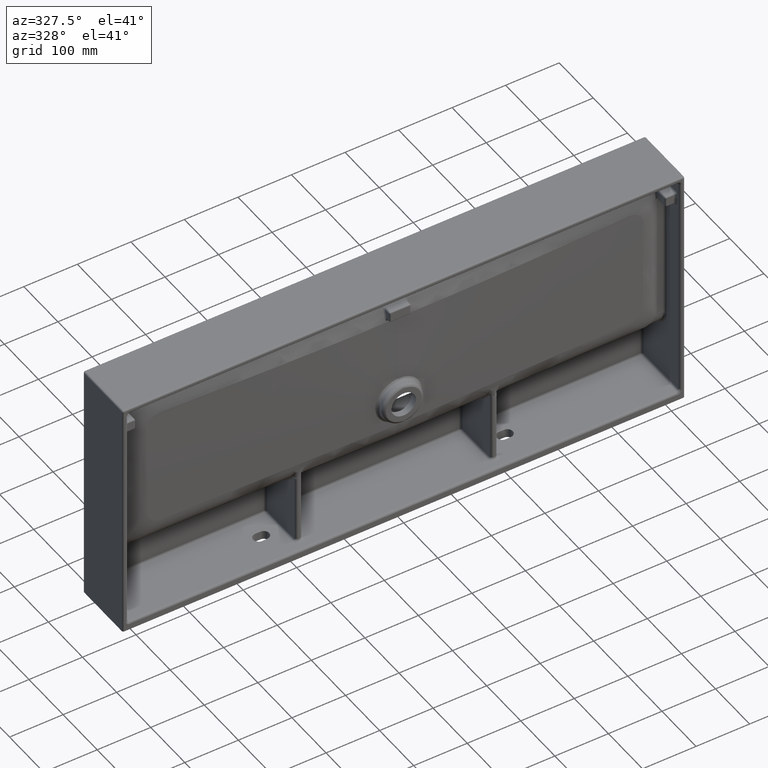
[diagram: clean part render]
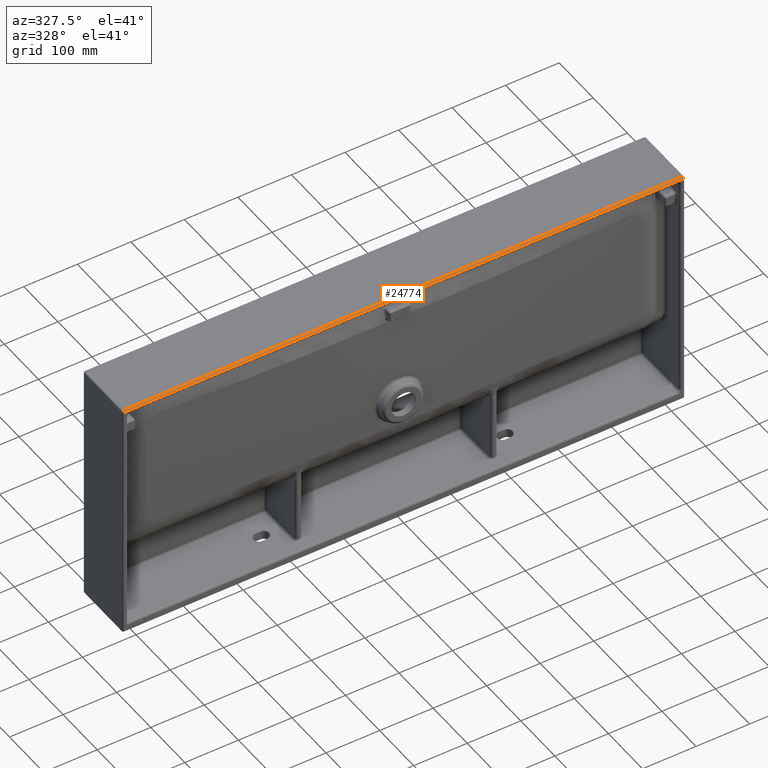
[diagram: same view with one face highlighted and labeled with its STEP entity id]
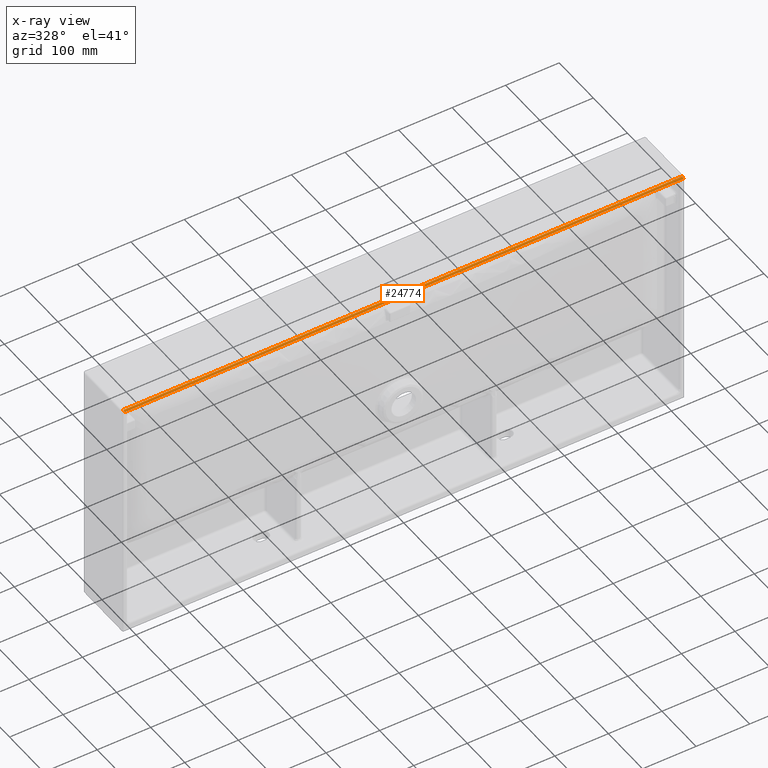
[diagram: x-ray of the same camera — body ghosted, the highlighted face saturated]
A machine part, auxiliary view. The second image highlights one B-rep face of the part: STEP entity #24774.
The next image is the same camera in x-ray: the body ghosted, the highlighted face saturated — about 0% of this face is hidden behind the body in this view.
In plain terms, the highlighted cylindrical surface (edge-blend (fillet) strip) has radius 3 mm, axis along (-1, -0, 0).
Its self-contained STEP definition (entity closure, byte-faithful):
#3615 = CARTESIAN_POINT ( 'NONE',  ( 77.99999999999951700, 0.0000000000000000000, 456.9999999999999400 ) ) ;
#5307 = FACE_OUTER_BOUND ( 'NONE', #23391, .T. ) ;
#7048 = CARTESIAN_POINT ( 'NONE',  ( 1122.000000000000000, 0.0000000000000000000, 456.9999999999999400 ) ) ;
#8831 = B_SPLINE_CURVE_WITH_KNOTS ( 'NONE', 3,
 ( #68832, #76207, #54310, #9753, #61775, #17244, #69143, #24624, #76513, #32116 ),
 .UNSPECIFIED., .F., .F.,
 ( 4, 2, 2, 2, 4 ),
 ( 0.0000000000000000000, 0.2500000000000000000, 0.5000000000000000000, 0.7500000000000000000, 1.000000000000000000 ),
 .UNSPECIFIED. ) ;
#9191 = VERTEX_POINT ( 'NONE', #56309 ) ;
#9753 = CARTESIAN_POINT ( 'NONE',  ( 1122.000000000000000, 0.3786408349372649700, 458.5108569411125400 ) ) ;
#11685 = CARTESIAN_POINT ( 'NONE',  ( 1185.000004263183200, 3.000000000000055500, 457.0000000000000000 ) ) ;
#12430 = VERTEX_POINT ( 'NONE', #62488 ) ;
#15033 = CARTESIAN_POINT ( 'NONE',  ( 1122.000000000001100, 2.999999999999986200, 460.0000000000000000 ) ) ;
#17244 = CARTESIAN_POINT ( 'NONE',  ( 1122.000000000000000, 1.156359840075279300, 459.3990005271945700 ) ) ;
#17475 = ORIENTED_EDGE ( 'NONE', *, *, #66239, .T. ) ;
#22413 = CARTESIAN_POINT ( 'NONE',  ( 773.9999999999995500, 3.000000000000001800, 460.0000000000000000 ) ) ;
#22637 = ORIENTED_EDGE ( 'NONE', *, *, #86615, .T. ) ;
#23391 = EDGE_LOOP ( 'NONE', ( #40473, #38882, #17475, #22637 ) ) ;
#24624 = CARTESIAN_POINT ( 'NONE',  ( 1122.000000000000500, 2.214756346922167800, 459.9219180300050900 ) ) ;
#24774 = ADVANCED_FACE ( 'NONE', ( #5307 ), #42462, .T. ) ;
#25675 = CARTESIAN_POINT ( 'NONE',  ( 77.99999999999963100, 2.214756346922167800, 459.9219180300050300 ) ) ;
#26726 = CARTESIAN_POINT ( 'NONE',  ( 425.9999999999998300, 0.0000000000000000000, 457.0000000000000000 ) ) ;
#31195 = CARTESIAN_POINT ( 'NONE',  ( 77.99999999999951700, 2.999999999999988900, 459.9999999999999400 ) ) ;
#32116 = CARTESIAN_POINT ( 'NONE',  ( 1122.000000000001100, 2.999999999999986200, 460.0000000000000000 ) ) ;
#33153 = CARTESIAN_POINT ( 'NONE',  ( 77.99999999999963100, 1.156359840075279500, 459.3990005271945700 ) ) ;
#37257 = EDGE_CURVE ( 'NONE', #71289, #9191, #67032, .T. ) ;
#38471 = VERTEX_POINT ( 'NONE', #83673 ) ;
#38882 = ORIENTED_EDGE ( 'NONE', *, *, #73671, .T. ) ;
#40301 = CARTESIAN_POINT ( 'NONE',  ( 77.99999999999963100, 2.607300918301278500, 459.9999999999999400 ) ) ;
#40473 = ORIENTED_EDGE ( 'NONE', *, *, #37257, .F. ) ;
#40628 = CARTESIAN_POINT ( 'NONE',  ( 77.99999999999963100, 0.3786408349372651400, 458.5108569411126500 ) ) ;
#42462 = CYLINDRICAL_SURFACE ( 'NONE', #76880, 3.000000000000008900 ) ;
#48156 = CARTESIAN_POINT ( 'NONE',  ( 77.99999999999963100, 4.679010000632755100E-014, 457.3926990816987700 ) ) ;
#48892 = CARTESIAN_POINT ( 'NONE',  ( 1122.000000000000000, 0.0000000000000000000, 456.9999999999999400 ) ) ;
#54310 = CARTESIAN_POINT ( 'NONE',  ( 1122.000000000000000, 0.07808196999509838000, 457.7852436530779400 ) ) ;
#55248 = DIRECTION ( 'NONE',  ( -1.000000000000000000, -0.0000000000000000000, 0.0000000000000000000 ) ) ;
#56309 = CARTESIAN_POINT ( 'NONE',  ( 77.99999999999951700, 0.0000000000000000000, 456.9999999999999400 ) ) ;
#61775 = CARTESIAN_POINT ( 'NONE',  ( 1122.000000000000200, 0.6009994728054939300, 458.8436401599248000 ) ) ;
#62488 = CARTESIAN_POINT ( 'NONE',  ( 1122.000000000001100, 2.999999999999986200, 460.0000000000000000 ) ) ;
#62814 = CARTESIAN_POINT ( 'NONE',  ( 77.99999999999951700, 2.999999999999988900, 459.9999999999999400 ) ) ;
#66239 = EDGE_CURVE ( 'NONE', #12430, #38471, #92422, .T. ) ;
#67032 = B_SPLINE_CURVE_WITH_KNOTS ( 'NONE', 3,
 ( #48892, #93128, #26726, #78611 ),
 .UNSPECIFIED., .F., .F.,
 ( 4, 4 ),
 ( 0.0000000000000000000, 1.000000000000000000 ),
 .UNSPECIFIED. ) ;
#68832 = CARTESIAN_POINT ( 'NONE',  ( 1122.000000000000000, 0.0000000000000000000, 456.9999999999999400 ) ) ;
#69143 = CARTESIAN_POINT ( 'NONE',  ( 1122.000000000000200, 1.489143058887320700, 459.6213591650627600 ) ) ;
#71002 = DIRECTION ( 'NONE',  ( 0.0000000000000000000, 1.000000000000000000, 0.0000000000000000000 ) ) ;
#71289 = VERTEX_POINT ( 'NONE', #7048 ) ;
#73671 = EDGE_CURVE ( 'NONE', #71289, #12430, #8831, .T. ) ;
#75614 = CARTESIAN_POINT ( 'NONE',  ( 425.9999999999994900, 3.000000000000001800, 460.0000000000000000 ) ) ;
#76207 = CARTESIAN_POINT ( 'NONE',  ( 1122.000000000000000, 4.679941736874733500E-014, 457.3926990816987100 ) ) ;
#76513 = CARTESIAN_POINT ( 'NONE',  ( 1122.000000000000200, 2.607300918301278500, 460.0000000000000600 ) ) ;
#76880 = AXIS2_PLACEMENT_3D ( 'NONE', #11685, #55248, #71002 ) ;
#77550 = CARTESIAN_POINT ( 'NONE',  ( 77.99999999999961600, 1.489143058887320500, 459.6213591650627000 ) ) ;
#78611 = CARTESIAN_POINT ( 'NONE',  ( 77.99999999999951700, 0.0000000000000000000, 456.9999999999999400 ) ) ;
#83673 = CARTESIAN_POINT ( 'NONE',  ( 77.99999999999951700, 2.999999999999988900, 459.9999999999999400 ) ) ;
#84974 = CARTESIAN_POINT ( 'NONE',  ( 77.99999999999964500, 0.6009994728054939300, 458.8436401599248000 ) ) ;
#86615 = EDGE_CURVE ( 'NONE', #38471, #9191, #89027, .T. ) ;
#89027 = B_SPLINE_CURVE_WITH_KNOTS ( 'NONE', 3,
 ( #62814, #40301, #25675, #77550, #33153, #84974, #40628, #92398, #48156, #3615 ),
 .UNSPECIFIED., .F., .F.,
 ( 4, 2, 2, 2, 4 ),
 ( 0.0000000000000000000, 0.2500000000000000000, 0.5000000000000000000, 0.7500000000000000000, 1.000000000000000000 ),
 .UNSPECIFIED. ) ;
#92398 = CARTESIAN_POINT ( 'NONE',  ( 77.99999999999964500, 0.07808196999509836600, 457.7852436530778800 ) ) ;
#92422 = B_SPLINE_CURVE_WITH_KNOTS ( 'NONE', 3,
 ( #15033, #22413, #75614, #31195 ),
 .UNSPECIFIED., .F., .F.,
 ( 4, 4 ),
 ( 0.0000000000000000000, 1.000000000000000000 ),
 .UNSPECIFIED. ) ;
#93128 = CARTESIAN_POINT ( 'NONE',  ( 773.9999999999998900, 0.0000000000000000000, 457.0000000000000000 ) ) ;